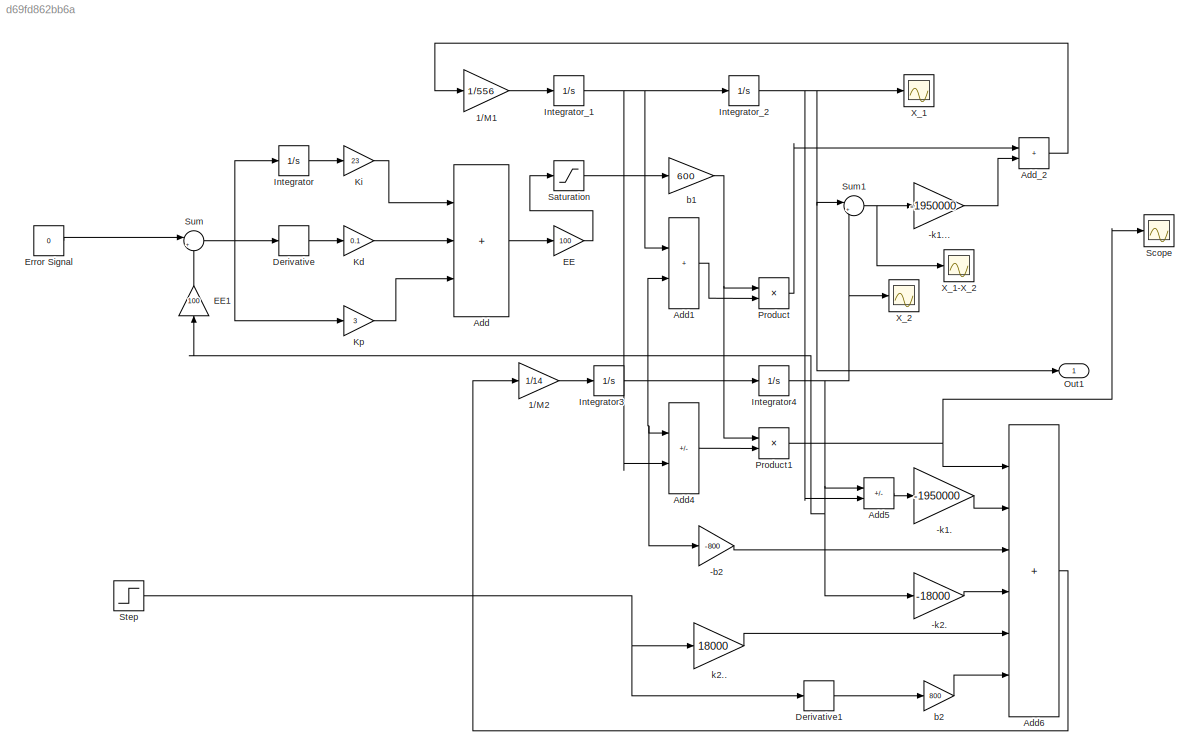
MODEL slx_d69fd862bb6a
KIND model
CONFIG AbsTol = auto
CONFIG EnableMultiTasking = off
CONFIG FixedStep = auto
CONFIG MaxStep = auto
CONFIG MinStep = auto
CONFIG RelTol = 1e-3
CONFIG SampleTimeConstraint = Unconstrained
CONFIG SolverName = VariableStepAuto
CONFIG StartTime = 0.0
CONFIG StopTime = 40
BLOCK [Gain] -b2
  Gain = -800
BLOCK [Gain] -k1.
  Gain = -1950000
BLOCK [Gain] -k1...
  Gain = -1950000
BLOCK [Gain] -k2.
  Gain = -18000
BLOCK [Gain] 1//M1
  Gain = 1/556
BLOCK [Gain] 1//M2
  Gain = 1/14
BLOCK [Sum] Add 
  IconShape = rectangular
  Inputs = +++
BLOCK [Sum] Add1 
  IconShape = rectangular
BLOCK [Sum] Add4 
  IconShape = rectangular
  Inputs = +-
BLOCK [Sum] Add5
  IconShape = rectangular
  Inputs = +-
BLOCK [Sum] Add6
  IconShape = rectangular
  Inputs = ++++++
BLOCK [Sum] Add_2
  IconShape = rectangular
BLOCK [Derivative] Derivative 
BLOCK [Derivative] Derivative1
BLOCK [Gain] EE
  Gain = 100
BLOCK [Gain] EE1
  Gain = 100
  NameLocation = right
BLOCK [Constant] Error Signal
  Value = 0
BLOCK [Integrator] Integrator 
BLOCK [Integrator] Integrator3
BLOCK [Integrator] Integrator4
BLOCK [Integrator] Integrator_1 
BLOCK [Integrator] Integrator_2 
BLOCK [Gain] Kd
  Gain = 0.1
BLOCK [Gain] Ki
  Gain = 23
BLOCK [Gain] Kp
  Gain = 3
BLOCK [Outport] Out1
  VectorParamsAs1DForOutWhenUnconnected = off
BLOCK [Product] Product 
BLOCK [Product] Product1
BLOCK [Saturate] Saturation
  LowerLimit = -1
  UpperLimit = 1
BLOCK [Scope] Scope
  Floating = off
  NumInputPorts = 1
  ScopeSpecificationString = Simulink.scopes.TimeScopeBlockCfg('CurrentConfiguration', extmgr.ConfigurationSet(extmgr.Configuration('Core','General UI',true),extmgr.Configuration('Core','Source UI',true),extmgr.Configuration('Sources','WiredSimulink',true,'DataLoggingVariableName','ScopeData1'),extmgr.Configuration('Visuals','Time Domain',true,'SerializedDisplays',{struct('MinYLimReal','-102.64764','MaxYLimReal','137.71505','...<+1381ch>
BLOCK [Step] Step
  SampleTime = 0
  Time = 5
BLOCK [Sum] Sum
  Inputs = |+-
BLOCK [Sum] Sum1
  Inputs = |+-
BLOCK [Scope] X_1
  Floating = off
  NumInputPorts = 1
  ScopeSpecificationString = Simulink.scopes.TimeScopeBlockCfg('CurrentConfiguration', extmgr.ConfigurationSet(extmgr.Configuration('Core','General UI',true),extmgr.Configuration('Core','Source UI',true),extmgr.Configuration('Sources','WiredSimulink',true),extmgr.Configuration('Visuals','Time Domain',true,'SerializedDisplays',{struct('MinYLimReal','-0.02859','MaxYLimReal','0.06324','YLabelReal','','MinYLimMag','0.00000','MaxY...<+1349ch>
BLOCK [Scope] X_1-X_2
  Floating = off
  NumInputPorts = 1
  ScopeSpecificationString = Simulink.scopes.TimeScopeBlockCfg('CurrentConfiguration', extmgr.ConfigurationSet(extmgr.Configuration('Core','General UI',true),extmgr.Configuration('Core','Source UI',true),extmgr.Configuration('Sources','WiredSimulink',true,'DataLoggingVariableName','ScopeData1'),extmgr.Configuration('Visuals','Time Domain',true,'SerializedDisplays',{struct('MinYLimReal','-0.00132','MaxYLimReal','0.00091','YLab...<+1363ch>
BLOCK [Scope] X_2
  Floating = off
  NumInputPorts = 1
  ScopeSpecificationString = Simulink.scopes.TimeScopeBlockCfg('CurrentConfiguration', extmgr.ConfigurationSet(extmgr.Configuration('Core','General UI',true),extmgr.Configuration('Core','Source UI',true),extmgr.Configuration('Sources','WiredSimulink',true,'DataLoggingVariableName','ScopeData2'),extmgr.Configuration('Visuals','Time Domain',true,'SerializedDisplays',{struct('MinYLimReal','-0.02834','MaxYLimReal','0.0627','YLabe...<+1366ch>
BLOCK [Gain] b1
  Gain = 600
BLOCK [Gain] b2
  Gain = 800
BLOCK [Gain] k2..
  Gain = 18000
LINE -b2:1 -> Add6:3
LINE -k1...:1 -> Add_2:2
LINE -k1.:1 -> Add6:2
LINE -k2.:1 -> Add6:4
LINE 1//M1:1 -> Integrator_1 :1
LINE 1//M2:1 -> Integrator3:1
LINE Add :1 -> EE:1
LINE Add1 :1 -> Product :2
LINE Add4 :1 -> Product1:2
LINE Add5:1 -> -k1.:1
LINE Add6:1 -> 1//M2:1
LINE Add_2:1 -> 1//M1:1
LINE Derivative :1 -> Kd:1
LINE Derivative1:1 -> b2:1
LINE EE1:1 -> Sum:2
LINE EE:1 -> Saturation:1
LINE Error Signal:1 -> Sum:1
LINE Integrator :1 -> Ki:1
NET Integrator3:1 -> -b2:1, Add1 :2, Add4 :1, Integrator4:1
NET Integrator4:1 -> -k2.:1, Add5:1, EE1:1, Sum1:2, X_2:1
NET Integrator_1 :1 -> Add1 :1, Add4 :2, Integrator_2 :1
NET Integrator_2 :1 -> Add5:2, Out1:1, Sum1:1, X_1:1
LINE Kd:1 -> Add :2
LINE Ki:1 -> Add :1
LINE Kp:1 -> Add :3
LINE Product :1 -> Add_2:1
NET Product1:1 -> Add6:1, Scope:1
LINE Saturation:1 -> b1:1
NET Step:1 -> Derivative1:1, k2..:1
NET Sum1:1 -> -k1...:1, X_1-X_2:1
NET Sum:1 -> Derivative :1, Integrator :1, Kp:1
NET b1:1 -> Product :1, Product1:1
LINE b2:1 -> Add6:6
LINE k2..:1 -> Add6:5
note: NET lines group one-source signal fan-out (src -> all destinations, sorted); 1:1 wires keep LINE
